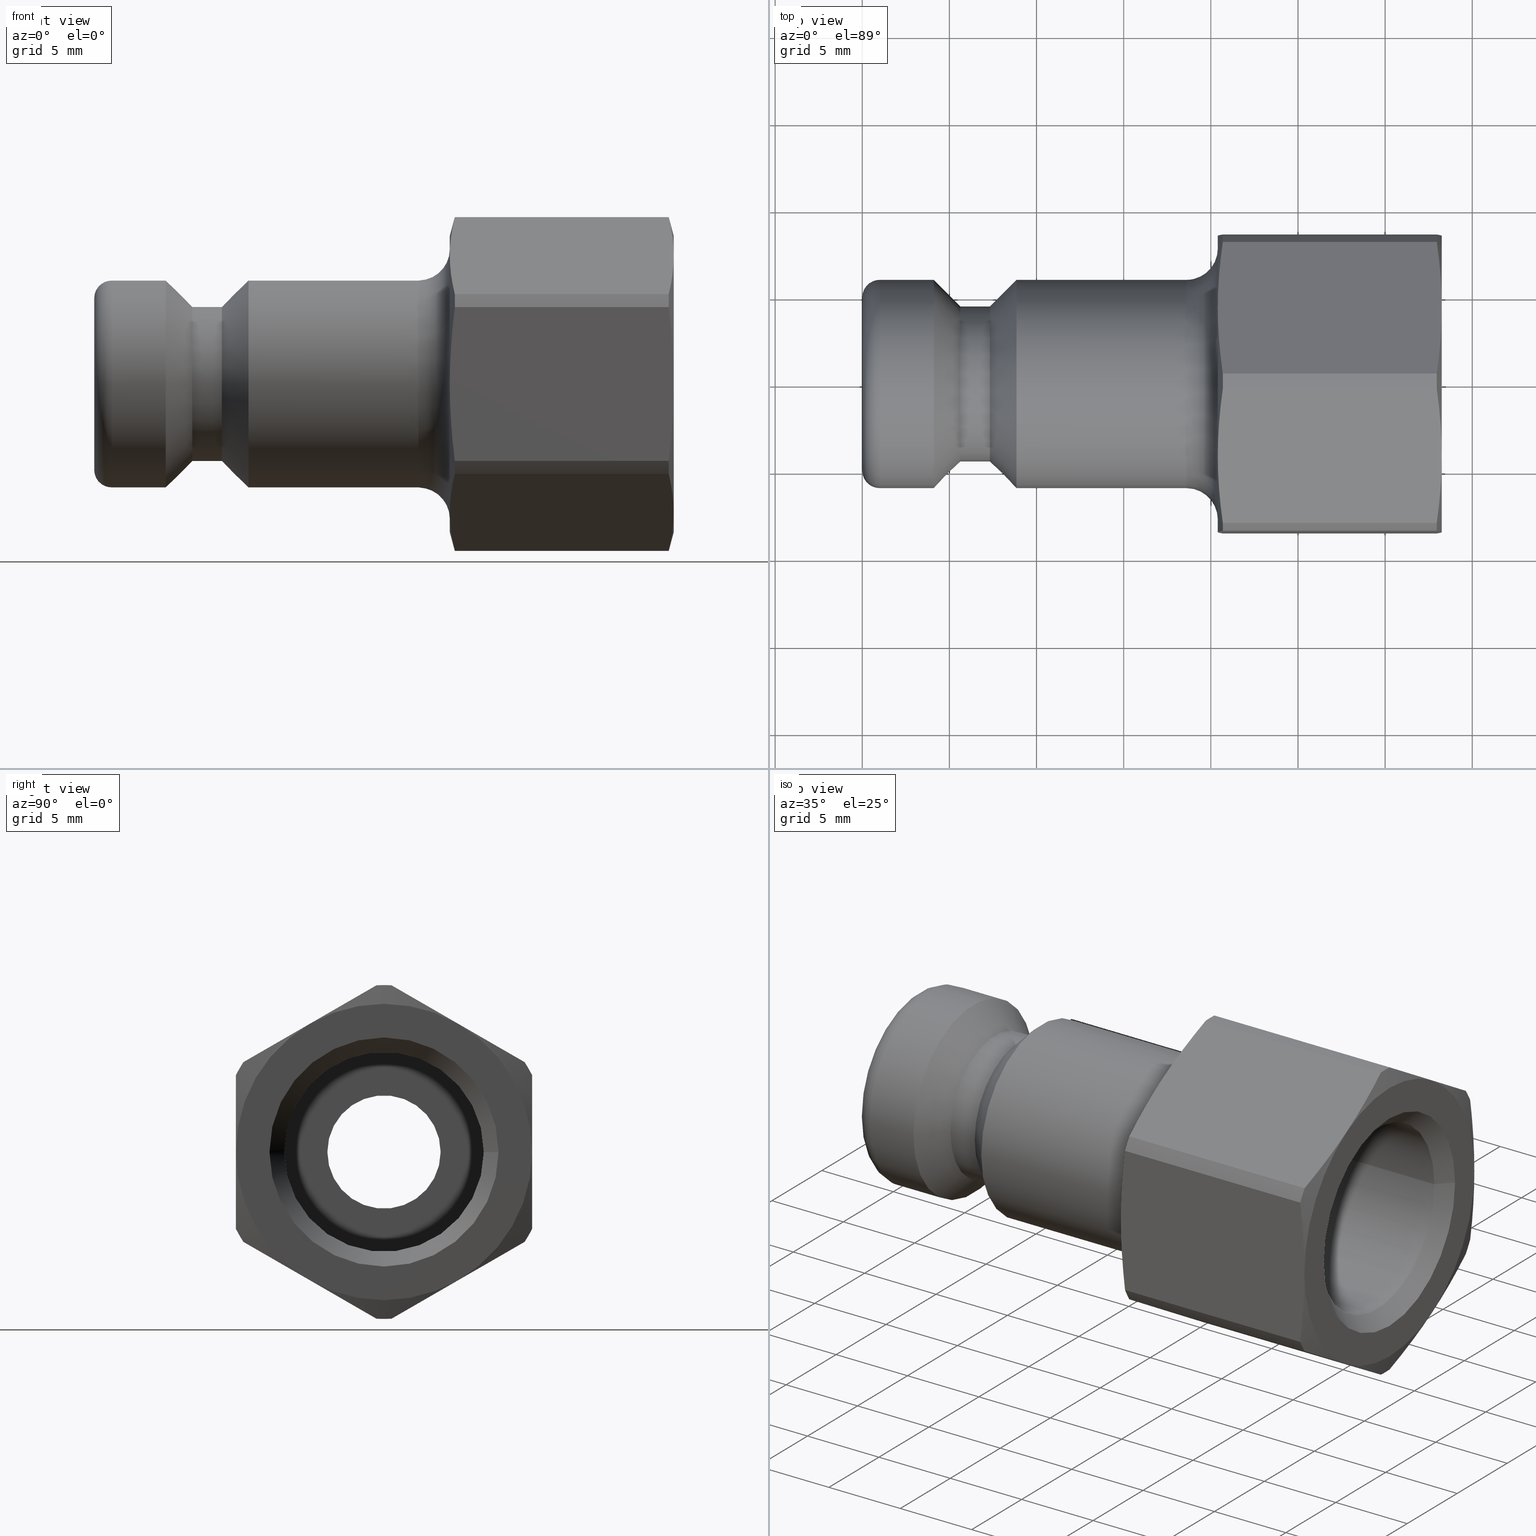
[diagram: canonical four-view strip — front | top / right | iso, engineering-drawing reading convention]
A machine part, canonical four-view strip (front | top / right | iso — engineering-drawing reading convention). The complete STEP part file that produces these views, byte-faithful:
ISO-10303-21;
HEADER;
/****************************************************************
 * Generated by software with PDE/Lib inside                    *
 * PDElib Version v51a, created Thu 01/14/2010                  *
 * ITI Transcendata (http://www.transcendata.com/)              *
 ****************************************************************/
FILE_DESCRIPTION((''),'2;1');
FILE_NAME('J:\\3D Zeichnungen_step\\Serie 52\\52sfiw13sxn.stp','2012-12-12T09:20:34',('IA176480'),(''),'Autodesk Inventor 2011','Autodesk Inventor 2011','');
FILE_SCHEMA(('AUTOMOTIVE_DESIGN { 1 0 10303 214 1 1 1 1 }'));
ENDSEC;
DATA;
#5=APPLICATION_CONTEXT('automotive design');
#6=APPLICATION_PROTOCOL_DEFINITION('International Standard','automotive_design',2001,#5);
#7=PRODUCT_CONTEXT('',#5,'mechanical');
#8=PRODUCT('D105388','D105388',$,(#7));
#9=PRODUCT_RELATED_PRODUCT_CATEGORY('part',$,(#8));
#10=PRODUCT_DEFINITION_FORMATION('',$,#8);
#11=PRODUCT_DEFINITION_CONTEXT('part definition',#5,'design');
#12=PRODUCT_DEFINITION('',$,#10,#11);
#18=(NAMED_UNIT(*)PLANE_ANGLE_UNIT()SI_UNIT($,.RADIAN.));
#19=DIMENSIONAL_EXPONENTS(0.0,0.0,0.0,0.0,0.0,0.0,0.0);
#20=PLANE_ANGLE_MEASURE_WITH_UNIT(PLANE_ANGLE_MEASURE(0.017453292500000),#18);
#24=(CONVERSION_BASED_UNIT('DEGREE',#20)NAMED_UNIT(#19)PLANE_ANGLE_UNIT());
#28=(NAMED_UNIT(*)SI_UNIT($,.STERADIAN.)SOLID_ANGLE_UNIT());
#32=(LENGTH_UNIT()NAMED_UNIT(*)SI_UNIT(.MILLI.,.METRE.));
#34=UNCERTAINTY_MEASURE_WITH_UNIT(LENGTH_MEASURE(0.010000000000000),#32,'DISTANCE_ACCURACY_VALUE','');
#36=(GEOMETRIC_REPRESENTATION_CONTEXT(3)GLOBAL_UNCERTAINTY_ASSIGNED_CONTEXT((#34))GLOBAL_UNIT_ASSIGNED_CONTEXT((#24,#28,#32))REPRESENTATION_CONTEXT('None','None'));
#37=AXIS2_PLACEMENT_3D('',#38,#39,#40);
#38=CARTESIAN_POINT('',(0.0,0.0,0.0));
#39=DIRECTION('',(0.0,0.0,1.0));
#40=DIRECTION('',(1.0,0.0,0.0));
#41=SHAPE_REPRESENTATION('',(#37),#36);
#42=PRODUCT_DEFINITION_SHAPE('','',#12);
#43=SHAPE_DEFINITION_REPRESENTATION(#42,#41);
#49=(NAMED_UNIT(*)PLANE_ANGLE_UNIT()SI_UNIT($,.RADIAN.));
#50=DIMENSIONAL_EXPONENTS(0.0,0.0,0.0,0.0,0.0,0.0,0.0);
#51=PLANE_ANGLE_MEASURE_WITH_UNIT(PLANE_ANGLE_MEASURE(0.017453292500000),#49);
#55=(CONVERSION_BASED_UNIT('DEGREE',#51)NAMED_UNIT(#50)PLANE_ANGLE_UNIT());
#59=(NAMED_UNIT(*)SI_UNIT($,.STERADIAN.)SOLID_ANGLE_UNIT());
#63=(LENGTH_UNIT()NAMED_UNIT(*)SI_UNIT(.MILLI.,.METRE.));
#65=UNCERTAINTY_MEASURE_WITH_UNIT(LENGTH_MEASURE(0.000001000000000),#63,'DISTANCE_ACCURACY_VALUE','');
#67=(GEOMETRIC_REPRESENTATION_CONTEXT(3)GLOBAL_UNCERTAINTY_ASSIGNED_CONTEXT((#65))GLOBAL_UNIT_ASSIGNED_CONTEXT((#55,#59,#63))REPRESENTATION_CONTEXT('','3D'));
#68=CARTESIAN_POINT('',(18.600000000000001,0.0,0.0));
#69=DIRECTION('',(1.0,0.0,0.0));
#70=DIRECTION('',(0.0,0.0,-1.0));
#71=AXIS2_PLACEMENT_3D('',#68,#69,#70);
#72=TOROIDAL_SURFACE('',#71,7.775000000000000,1.800000000000000);
#73=CARTESIAN_POINT('',(18.600000000000001,5.975000000000001,0.0));
#74=VERTEX_POINT('',#73);
#75=CARTESIAN_POINT('',(18.600000000000001,0.0,0.0));
#76=DIRECTION('',(1.0,0.0,0.0));
#77=DIRECTION('',(0.0,-1.0,0.0));
#78=AXIS2_PLACEMENT_3D('',#75,#76,#77);
#79=CIRCLE('',#78,5.975000000000001);
#80=EDGE_CURVE('',#74,#74,#79,.T.);
#81=ORIENTED_EDGE('',*,*,#80,.T.);
#82=EDGE_LOOP('',(#81));
#83=FACE_OUTER_BOUND('',#82,.T.);
#84=CARTESIAN_POINT('',(20.399999999999999,7.775000000000000,-1.904326E-015));
#85=VERTEX_POINT('',#84);
#86=CARTESIAN_POINT('',(20.399999999999999,0.0,0.0));
#87=DIRECTION('',(-1.0,0.0,0.0));
#88=DIRECTION('',(0.0,-1.0,0.0));
#89=AXIS2_PLACEMENT_3D('',#86,#87,#88);
#90=CIRCLE('',#89,7.775000000000000);
#91=EDGE_CURVE('',#85,#85,#90,.T.);
#92=ORIENTED_EDGE('',*,*,#91,.T.);
#93=EDGE_LOOP('',(#92));
#94=FACE_BOUND('',#93,.T.);
#95=ADVANCED_FACE('',(#83,#94),#72,.F.);
#96=CARTESIAN_POINT('',(14.625000000000000,0.0,0.0));
#97=DIRECTION('',(1.0,0.0,0.0));
#98=DIRECTION('',(0.0,1.0,0.0));
#99=AXIS2_PLACEMENT_3D('',#96,#97,#98);
#100=CYLINDRICAL_SURFACE('',#99,5.975000000000001);
#101=CARTESIAN_POINT('',(8.849999999999998,5.975000000000001,0.0));
#102=VERTEX_POINT('',#101);
#103=CARTESIAN_POINT('',(8.849999999999998,0.0,0.0));
#104=DIRECTION('',(1.0,0.0,0.0));
#105=DIRECTION('',(0.0,1.0,0.0));
#106=AXIS2_PLACEMENT_3D('',#103,#104,#105);
#107=CIRCLE('',#106,5.975000000000001);
#108=EDGE_CURVE('',#102,#102,#107,.T.);
#109=ORIENTED_EDGE('',*,*,#108,.T.);
#110=EDGE_LOOP('',(#109));
#111=FACE_OUTER_BOUND('',#110,.T.);
#112=ORIENTED_EDGE('',*,*,#80,.F.);
#113=EDGE_LOOP('',(#112));
#114=FACE_BOUND('',#113,.T.);
#115=ADVANCED_FACE('',(#111,#114),#100,.T.);
#116=CARTESIAN_POINT('',(20.399999999999999,7.237500000000001,0.0));
#117=DIRECTION('',(-1.0,0.0,0.0));
#118=DIRECTION('',(0.0,0.0,1.0));
#119=AXIS2_PLACEMENT_3D('',#116,#117,#118);
#120=PLANE('',#119);
#121=CARTESIAN_POINT('',(20.399999999999999,8.500000000000000,0.0));
#122=VERTEX_POINT('',#121);
#123=CARTESIAN_POINT('',(20.399999999999999,4.250000000000001,7.361215932167728));
#124=VERTEX_POINT('',#123);
#125=CARTESIAN_POINT('',(20.399999999999999,0.0,0.0));
#126=DIRECTION('',(1.0,0.0,0.0));
#127=DIRECTION('',(0.0,1.0,0.0));
#128=AXIS2_PLACEMENT_3D('',#125,#126,#127);
#129=CIRCLE('',#128,8.500000000000000);
#130=EDGE_CURVE('',#122,#124,#129,.T.);
#131=ORIENTED_EDGE('',*,*,#130,.F.);
#132=CARTESIAN_POINT('',(20.399999999999999,4.249999999999994,-7.361215932167733));
#133=VERTEX_POINT('',#132);
#134=CARTESIAN_POINT('',(20.399999999999999,0.0,0.0));
#135=DIRECTION('',(1.0,0.0,0.0));
#136=DIRECTION('',(0.0,1.0,0.0));
#137=AXIS2_PLACEMENT_3D('',#134,#135,#136);
#138=CIRCLE('',#137,8.500000000000000);
#139=EDGE_CURVE('',#133,#122,#138,.T.);
#140=ORIENTED_EDGE('',*,*,#139,.F.);
#141=CARTESIAN_POINT('',(20.399999999999999,-4.250000000000004,-7.361215932167728));
#142=VERTEX_POINT('',#141);
#143=CARTESIAN_POINT('',(20.399999999999999,0.0,0.0));
#144=DIRECTION('',(1.0,0.0,0.0));
#145=DIRECTION('',(0.0,1.0,0.0));
#146=AXIS2_PLACEMENT_3D('',#143,#144,#145);
#147=CIRCLE('',#146,8.500000000000000);
#148=EDGE_CURVE('',#142,#133,#147,.T.);
#149=ORIENTED_EDGE('',*,*,#148,.F.);
#150=CARTESIAN_POINT('',(20.399999999999999,-8.500000000000000,1.415534E-015));
#151=VERTEX_POINT('',#150);
#152=CARTESIAN_POINT('',(20.399999999999999,0.0,0.0));
#153=DIRECTION('',(1.0,0.0,0.0));
#154=DIRECTION('',(0.0,1.0,0.0));
#155=AXIS2_PLACEMENT_3D('',#152,#153,#154);
#156=CIRCLE('',#155,8.500000000000000);
#157=EDGE_CURVE('',#151,#142,#156,.T.);
#158=ORIENTED_EDGE('',*,*,#157,.F.);
#159=CARTESIAN_POINT('',(20.399999999999999,-4.249999999999998,7.361215932167731));
#160=VERTEX_POINT('',#159);
#161=CARTESIAN_POINT('',(20.399999999999999,0.0,0.0));
#162=DIRECTION('',(1.0,0.0,0.0));
#163=DIRECTION('',(0.0,1.0,0.0));
#164=AXIS2_PLACEMENT_3D('',#161,#162,#163);
#165=CIRCLE('',#164,8.500000000000000);
#166=EDGE_CURVE('',#160,#151,#165,.T.);
#167=ORIENTED_EDGE('',*,*,#166,.F.);
#168=CARTESIAN_POINT('',(20.399999999999999,0.0,0.0));
#169=DIRECTION('',(1.0,0.0,0.0));
#170=DIRECTION('',(0.0,1.0,0.0));
#171=AXIS2_PLACEMENT_3D('',#168,#169,#170);
#172=CIRCLE('',#171,8.500000000000000);
#173=EDGE_CURVE('',#124,#160,#172,.T.);
#174=ORIENTED_EDGE('',*,*,#173,.F.);
#175=EDGE_LOOP('',(#131,#140,#149,#158,#167,#174));
#176=FACE_OUTER_BOUND('',#175,.T.);
#177=ORIENTED_EDGE('',*,*,#91,.F.);
#178=EDGE_LOOP('',(#177));
#179=FACE_BOUND('',#178,.T.);
#180=ADVANCED_FACE('',(#176,#179),#120,.T.);
#181=CARTESIAN_POINT('',(1.0,0.0,0.0));
#182=DIRECTION('',(1.0,0.0,0.0));
#183=DIRECTION('',(0.0,0.0,-1.0));
#184=AXIS2_PLACEMENT_3D('',#181,#182,#183);
#185=TOROIDAL_SURFACE('',#184,4.975000000000001,1.0);
#186=CARTESIAN_POINT('',(0.0,4.975000000000001,0.0));
#187=VERTEX_POINT('',#186);
#188=CARTESIAN_POINT('',(0.0,0.0,0.0));
#189=DIRECTION('',(1.0,0.0,0.0));
#190=DIRECTION('',(0.0,-1.0,0.0));
#191=AXIS2_PLACEMENT_3D('',#188,#189,#190);
#192=CIRCLE('',#191,4.975000000000001);
#193=EDGE_CURVE('',#187,#187,#192,.T.);
#194=ORIENTED_EDGE('',*,*,#193,.T.);
#195=EDGE_LOOP('',(#194));
#196=FACE_OUTER_BOUND('',#195,.T.);
#197=CARTESIAN_POINT('',(1.0,5.975000000000001,-1.463453E-015));
#198=VERTEX_POINT('',#197);
#199=CARTESIAN_POINT('',(1.0,0.0,0.0));
#200=DIRECTION('',(-1.0,0.0,0.0));
#201=DIRECTION('',(0.0,-1.0,0.0));
#202=AXIS2_PLACEMENT_3D('',#199,#200,#201);
#203=CIRCLE('',#202,5.975000000000001);
#204=EDGE_CURVE('',#198,#198,#203,.T.);
#205=ORIENTED_EDGE('',*,*,#204,.T.);
#206=EDGE_LOOP('',(#205));
#207=FACE_BOUND('',#206,.T.);
#208=ADVANCED_FACE('',(#196,#207),#185,.T.);
#209=CARTESIAN_POINT('',(2.050000000000000,0.0,0.0));
#210=DIRECTION('',(1.0,0.0,0.0));
#211=DIRECTION('',(0.0,1.0,0.0));
#212=AXIS2_PLACEMENT_3D('',#209,#210,#211);
#213=CYLINDRICAL_SURFACE('',#212,5.975000000000001);
#214=CARTESIAN_POINT('',(4.100000000000000,5.975000000000001,0.0));
#215=VERTEX_POINT('',#214);
#216=CARTESIAN_POINT('',(4.100000000000000,0.0,0.0));
#217=DIRECTION('',(1.0,0.0,0.0));
#218=DIRECTION('',(0.0,1.0,0.0));
#219=AXIS2_PLACEMENT_3D('',#216,#217,#218);
#220=CIRCLE('',#219,5.975000000000001);
#221=EDGE_CURVE('',#215,#215,#220,.T.);
#222=ORIENTED_EDGE('',*,*,#221,.F.);
#223=EDGE_LOOP('',(#222));
#224=FACE_OUTER_BOUND('',#223,.T.);
#225=ORIENTED_EDGE('',*,*,#204,.F.);
#226=EDGE_LOOP('',(#225));
#227=FACE_BOUND('',#226,.T.);
#228=ADVANCED_FACE('',(#224,#227),#213,.T.);
#229=CARTESIAN_POINT('',(0.0,4.612499999999999,0.0));
#230=DIRECTION('',(-1.0,0.0,0.0));
#231=DIRECTION('',(0.0,0.0,1.0));
#232=AXIS2_PLACEMENT_3D('',#229,#230,#231);
#233=PLANE('',#232);
#234=ORIENTED_EDGE('',*,*,#193,.F.);
#235=EDGE_LOOP('',(#234));
#236=FACE_OUTER_BOUND('',#235,.T.);
#237=CARTESIAN_POINT('',(0.0,3.249999999999998,0.0));
#238=VERTEX_POINT('',#237);
#239=CARTESIAN_POINT('',(0.0,0.0,0.0));
#240=DIRECTION('',(1.0,0.0,0.0));
#241=DIRECTION('',(0.0,1.0,0.0));
#242=AXIS2_PLACEMENT_3D('',#239,#240,#241);
#243=CIRCLE('',#242,3.249999999999998);
#244=EDGE_CURVE('',#238,#238,#243,.T.);
#245=ORIENTED_EDGE('',*,*,#244,.T.);
#246=EDGE_LOOP('',(#245));
#247=FACE_BOUND('',#246,.T.);
#248=ADVANCED_FACE('',(#236,#247),#233,.T.);
#249=CARTESIAN_POINT('',(34.482762852840338,4.249999999999995,-7.361215932167733));
#250=DIRECTION('',(0.0,-0.499999999999999,0.866025403784439));
#251=DIRECTION('',(0.0,-0.866025403784439,-0.499999999999999));
#252=AXIS2_PLACEMENT_3D('',#249,#250,#251);
#253=PLANE('',#252);
#254=CARTESIAN_POINT('',(20.688045381863454,8.067455795421862,-5.157206801061425));
#255=VERTEX_POINT('',#254);
#256=CARTESIAN_POINT('',(20.688045381863454,8.067455795421894,-5.157206801061407));
#257=CARTESIAN_POINT('',(20.400000000000009,6.045207427999298,-6.324752440361122));
#258=CARTESIAN_POINT('',(20.400000000000006,4.249999999999995,-7.361215932167734));
#266=(BOUNDED_CURVE()B_SPLINE_CURVE(2,(#256,#257,#258),.UNSPECIFIED.,.F.,.U.)B_SPLINE_CURVE_WITH_KNOTS((3,3),(0.0,0.441955310884675),.UNSPECIFIED.)CURVE()GEOMETRIC_REPRESENTATION_ITEM()RATIONAL_B_SPLINE_CURVE((1.0,1.031133014754900,1.0))REPRESENTATION_ITEM(''));
#267=EDGE_CURVE('',#255,#133,#266,.T.);
#268=ORIENTED_EDGE('',*,*,#267,.F.);
#269=CARTESIAN_POINT('',(32.961954618136538,8.067455795421862,-5.157206801061425));
#270=VERTEX_POINT('',#269);
#271=CARTESIAN_POINT('',(32.961954618136545,8.067455795421862,-5.157206801061425));
#272=DIRECTION('',(-1.0,0.0,0.0));
#273=VECTOR('',#272,12.273909236273091);
#274=LINE('',#271,#273);
#275=EDGE_CURVE('',#270,#255,#274,.T.);
#276=ORIENTED_EDGE('',*,*,#275,.F.);
#277=CARTESIAN_POINT('',(33.250000000000000,4.249999999999994,-7.361215932167733));
#278=VERTEX_POINT('',#277);
#279=CARTESIAN_POINT('',(33.250000000000000,4.249999999999994,-7.361215932167734));
#280=CARTESIAN_POINT('',(33.250000000000000,6.045207427999223,-6.324752440361166));
#281=CARTESIAN_POINT('',(32.961954618136538,8.067455795421861,-5.157206801061427));
#289=(BOUNDED_CURVE()B_SPLINE_CURVE(2,(#279,#280,#281),.UNSPECIFIED.,.F.,.U.)B_SPLINE_CURVE_WITH_KNOTS((3,3),(0.441955310884671,0.883910621769341),.UNSPECIFIED.)CURVE()GEOMETRIC_REPRESENTATION_ITEM()RATIONAL_B_SPLINE_CURVE((1.0,1.031133014754903,1.0))REPRESENTATION_ITEM(''));
#290=EDGE_CURVE('',#278,#270,#289,.T.);
#291=ORIENTED_EDGE('',*,*,#290,.F.);
#292=CARTESIAN_POINT('',(32.961954618136538,0.432544204578125,-9.565225063274042));
#293=VERTEX_POINT('',#292);
#294=CARTESIAN_POINT('',(32.961954618136538,0.432544204578128,-9.565225063274042));
#295=CARTESIAN_POINT('',(33.250000000000000,2.454792572000764,-8.397679423974303));
#296=CARTESIAN_POINT('',(33.250000000000000,4.249999999999994,-7.361215932167734));
#304=(BOUNDED_CURVE()B_SPLINE_CURVE(2,(#294,#295,#296),.UNSPECIFIED.,.F.,.U.)B_SPLINE_CURVE_WITH_KNOTS((3,3),(0.0,0.441955310884671),.UNSPECIFIED.)CURVE()GEOMETRIC_REPRESENTATION_ITEM()RATIONAL_B_SPLINE_CURVE((1.0,1.031133014754924,1.0))REPRESENTATION_ITEM(''));
#305=EDGE_CURVE('',#293,#278,#304,.T.);
#306=ORIENTED_EDGE('',*,*,#305,.F.);
#307=CARTESIAN_POINT('',(20.688045381863454,0.432544204578125,-9.565225063274042));
#308=VERTEX_POINT('',#307);
#309=CARTESIAN_POINT('',(20.688045381863454,0.432544204578125,-9.565225063274042));
#310=DIRECTION('',(1.0,0.0,0.0));
#311=VECTOR('',#310,12.273909236273091);
#312=LINE('',#309,#311);
#313=EDGE_CURVE('',#308,#293,#312,.T.);
#314=ORIENTED_EDGE('',*,*,#313,.F.);
#315=CARTESIAN_POINT('',(20.400000000000006,4.249999999999995,-7.361215932167734));
#316=CARTESIAN_POINT('',(20.399999999999999,2.454792572000692,-8.397679423974347));
#317=CARTESIAN_POINT('',(20.688045381863454,0.432544204578093,-9.565225063274061));
#325=(BOUNDED_CURVE()B_SPLINE_CURVE(2,(#315,#316,#317),.UNSPECIFIED.,.F.,.U.)B_SPLINE_CURVE_WITH_KNOTS((3,3),(0.441955310884675,0.883910621769349),.UNSPECIFIED.)CURVE()GEOMETRIC_REPRESENTATION_ITEM()RATIONAL_B_SPLINE_CURVE((1.0,1.031133014754905,1.0))REPRESENTATION_ITEM(''));
#326=EDGE_CURVE('',#133,#308,#325,.T.);
#327=ORIENTED_EDGE('',*,*,#326,.F.);
#328=EDGE_LOOP('',(#268,#276,#291,#306,#314,#327));
#329=FACE_OUTER_BOUND('',#328,.T.);
#330=ADVANCED_FACE('',(#329),#253,.F.);
#331=CARTESIAN_POINT('',(34.482762852840338,-4.250000000000004,-7.361215932167728));
#332=DIRECTION('',(0.0,0.500000000000000,0.866025403784438));
#333=DIRECTION('',(0.0,-0.866025403784438,0.500000000000000));
#334=AXIS2_PLACEMENT_3D('',#331,#332,#333);
#335=PLANE('',#334);
#336=CARTESIAN_POINT('',(20.688045381863454,-0.432544204578139,-9.565225063274042));
#337=VERTEX_POINT('',#336);
#338=CARTESIAN_POINT('',(20.688045381863454,-0.432544204578108,-9.565225063274060));
#339=CARTESIAN_POINT('',(20.400000000000009,-2.454792572000709,-8.397679423974338));
#340=CARTESIAN_POINT('',(20.400000000000006,-4.250000000000004,-7.361215932167728));
#348=(BOUNDED_CURVE()B_SPLINE_CURVE(2,(#338,#339,#340),.UNSPECIFIED.,.F.,.U.)B_SPLINE_CURVE_WITH_KNOTS((3,3),(0.0,0.441955310884674),.UNSPECIFIED.)CURVE()GEOMETRIC_REPRESENTATION_ITEM()RATIONAL_B_SPLINE_CURVE((1.0,1.031133014754907,1.0))REPRESENTATION_ITEM(''));
#349=EDGE_CURVE('',#337,#142,#348,.T.);
#350=ORIENTED_EDGE('',*,*,#349,.F.);
#351=CARTESIAN_POINT('',(32.961954618136538,-0.432544204578139,-9.565225063274042));
#352=VERTEX_POINT('',#351);
#353=CARTESIAN_POINT('',(32.961954618136545,-0.432544204578139,-9.565225063274042));
#354=DIRECTION('',(-1.0,0.0,0.0));
#355=VECTOR('',#354,12.273909236273091);
#356=LINE('',#353,#355);
#357=EDGE_CURVE('',#352,#337,#356,.T.);
#358=ORIENTED_EDGE('',*,*,#357,.F.);
#359=CARTESIAN_POINT('',(33.250000000000000,-4.250000000000004,-7.361215932167728));
#360=VERTEX_POINT('',#359);
#361=CARTESIAN_POINT('',(33.250000000000000,-4.250000000000004,-7.361215932167728));
#362=CARTESIAN_POINT('',(33.250000000000000,-2.454792572000780,-8.397679423974296));
#363=CARTESIAN_POINT('',(32.961954618136538,-0.432544204578139,-9.565225063274042));
#371=(BOUNDED_CURVE()B_SPLINE_CURVE(2,(#361,#362,#363),.UNSPECIFIED.,.F.,.U.)B_SPLINE_CURVE_WITH_KNOTS((3,3),(0.441955310884671,0.883910621769342),.UNSPECIFIED.)CURVE()GEOMETRIC_REPRESENTATION_ITEM()RATIONAL_B_SPLINE_CURVE((1.0,1.031133014754922,1.0))REPRESENTATION_ITEM(''));
#372=EDGE_CURVE('',#360,#352,#371,.T.);
#373=ORIENTED_EDGE('',*,*,#372,.F.);
#374=CARTESIAN_POINT('',(32.961954618136538,-8.067455795421870,-5.157206801061413));
#375=VERTEX_POINT('',#374);
#376=CARTESIAN_POINT('',(32.961954618136538,-8.067455795421868,-5.157206801061415));
#377=CARTESIAN_POINT('',(33.250000000000007,-6.045207427999194,-6.324752440361178));
#378=CARTESIAN_POINT('',(33.250000000000000,-4.250000000000004,-7.361215932167728));
#386=(BOUNDED_CURVE()B_SPLINE_CURVE(2,(#376,#377,#378),.UNSPECIFIED.,.F.,.U.)B_SPLINE_CURVE_WITH_KNOTS((3,3),(0.0,0.441955310884671),.UNSPECIFIED.)CURVE()GEOMETRIC_REPRESENTATION_ITEM()RATIONAL_B_SPLINE_CURVE((1.0,1.031133014754933,1.0))REPRESENTATION_ITEM(''));
#387=EDGE_CURVE('',#375,#360,#386,.T.);
#388=ORIENTED_EDGE('',*,*,#387,.F.);
#389=CARTESIAN_POINT('',(20.688045381863454,-8.067455795421870,-5.157206801061413));
#390=VERTEX_POINT('',#389);
#391=CARTESIAN_POINT('',(20.688045381863454,-8.067455795421870,-5.157206801061413));
#392=DIRECTION('',(1.0,0.0,0.0));
#393=VECTOR('',#392,12.273909236273091);
#394=LINE('',#391,#393);
#395=EDGE_CURVE('',#390,#375,#394,.T.);
#396=ORIENTED_EDGE('',*,*,#395,.F.);
#397=CARTESIAN_POINT('',(20.400000000000006,-4.250000000000004,-7.361215932167728));
#398=CARTESIAN_POINT('',(20.399999999999999,-6.045207427999300,-6.324752440361117));
#399=CARTESIAN_POINT('',(20.688045381863454,-8.067455795421900,-5.157206801061395));
#407=(BOUNDED_CURVE()B_SPLINE_CURVE(2,(#397,#398,#399),.UNSPECIFIED.,.F.,.U.)B_SPLINE_CURVE_WITH_KNOTS((3,3),(0.441955310884674,0.883910621769349),.UNSPECIFIED.)CURVE()GEOMETRIC_REPRESENTATION_ITEM()RATIONAL_B_SPLINE_CURVE((1.0,1.031133014754903,1.0))REPRESENTATION_ITEM(''));
#408=EDGE_CURVE('',#142,#390,#407,.T.);
#409=ORIENTED_EDGE('',*,*,#408,.F.);
#410=EDGE_LOOP('',(#350,#358,#373,#388,#396,#409));
#411=FACE_OUTER_BOUND('',#410,.T.);
#412=ADVANCED_FACE('',(#411),#335,.F.);
#413=CARTESIAN_POINT('',(34.482762852840338,-8.500000000000000,1.110223E-015));
#414=DIRECTION('',(0.0,1.0,0.0));
#415=DIRECTION('',(0.0,0.0,1.0));
#416=AXIS2_PLACEMENT_3D('',#413,#414,#415);
#417=PLANE('',#416);
#418=CARTESIAN_POINT('',(20.688045381863454,-8.500000000000002,-4.408018262212622));
#419=VERTEX_POINT('',#418);
#420=CARTESIAN_POINT('',(20.688045381863454,-8.500000000000002,-4.408018262212659));
#421=CARTESIAN_POINT('',(20.400000000000009,-8.500000000000000,-2.072926983613210));
#422=CARTESIAN_POINT('',(20.400000000000006,-8.500000000000000,1.415534E-015));
#430=(BOUNDED_CURVE()B_SPLINE_CURVE(2,(#420,#421,#422),.UNSPECIFIED.,.F.,.U.)B_SPLINE_CURVE_WITH_KNOTS((3,3),(0.0,0.441955310884675),.UNSPECIFIED.)CURVE()GEOMETRIC_REPRESENTATION_ITEM()RATIONAL_B_SPLINE_CURVE((1.0,1.031133014754920,1.0))REPRESENTATION_ITEM(''));
#431=EDGE_CURVE('',#419,#151,#430,.T.);
#432=ORIENTED_EDGE('',*,*,#431,.F.);
#433=CARTESIAN_POINT('',(32.961954618136538,-8.500000000000002,-4.408018262212622));
#434=VERTEX_POINT('',#433);
#435=CARTESIAN_POINT('',(32.961954618136545,-8.500000000000002,-4.408018262212622));
#436=DIRECTION('',(-1.0,0.0,0.0));
#437=VECTOR('',#436,12.273909236273091);
#438=LINE('',#435,#437);
#439=EDGE_CURVE('',#434,#419,#438,.T.);
#440=ORIENTED_EDGE('',*,*,#439,.F.);
#441=CARTESIAN_POINT('',(33.250000000000000,-8.500000000000000,1.415534E-015));
#442=VERTEX_POINT('',#441);
#443=CARTESIAN_POINT('',(33.250000000000000,-8.500000000000000,1.415534E-015));
#444=CARTESIAN_POINT('',(33.250000000000000,-8.500000000000000,-2.072926983613113));
#445=CARTESIAN_POINT('',(32.961954618136538,-8.500000000000002,-4.408018262212622));
#453=(BOUNDED_CURVE()B_SPLINE_CURVE(2,(#443,#444,#445),.UNSPECIFIED.,.F.,.U.)B_SPLINE_CURVE_WITH_KNOTS((3,3),(0.441955310884671,0.883910621769342),.UNSPECIFIED.)CURVE()GEOMETRIC_REPRESENTATION_ITEM()RATIONAL_B_SPLINE_CURVE((1.0,1.031133014755003,1.0))REPRESENTATION_ITEM(''));
#454=EDGE_CURVE('',#442,#434,#453,.T.);
#455=ORIENTED_EDGE('',*,*,#454,.F.);
#456=CARTESIAN_POINT('',(32.961954618136538,-8.500000000000000,4.408018262212624));
#457=VERTEX_POINT('',#456);
#458=CARTESIAN_POINT('',(32.961954618136538,-8.500000000000000,4.408018262212624));
#459=CARTESIAN_POINT('',(33.250000000000000,-8.500000000000000,2.072926983613151));
#460=CARTESIAN_POINT('',(33.250000000000000,-8.500000000000000,1.415534E-015));
#468=(BOUNDED_CURVE()B_SPLINE_CURVE(2,(#458,#459,#460),.UNSPECIFIED.,.F.,.U.)B_SPLINE_CURVE_WITH_KNOTS((3,3),(0.0,0.441955310884671),.UNSPECIFIED.)CURVE()GEOMETRIC_REPRESENTATION_ITEM()RATIONAL_B_SPLINE_CURVE((1.0,1.031133014754911,1.0))REPRESENTATION_ITEM(''));
#469=EDGE_CURVE('',#457,#442,#468,.T.);
#470=ORIENTED_EDGE('',*,*,#469,.F.);
#471=CARTESIAN_POINT('',(20.688045381863454,-8.500000000000000,4.408018262212624));
#472=VERTEX_POINT('',#471);
#473=CARTESIAN_POINT('',(20.688045381863454,-8.500000000000000,4.408018262212624));
#474=DIRECTION('',(1.0,0.0,0.0));
#475=VECTOR('',#474,12.273909236273091);
#476=LINE('',#473,#475);
#477=EDGE_CURVE('',#472,#457,#476,.T.);
#478=ORIENTED_EDGE('',*,*,#477,.F.);
#479=CARTESIAN_POINT('',(20.400000000000006,-8.500000000000000,1.415534E-015));
#480=CARTESIAN_POINT('',(20.399999999999999,-8.500000000000000,2.072926983613213));
#481=CARTESIAN_POINT('',(20.688045381863454,-8.500000000000000,4.408018262212662));
#489=(BOUNDED_CURVE()B_SPLINE_CURVE(2,(#479,#480,#481),.UNSPECIFIED.,.F.,.U.)B_SPLINE_CURVE_WITH_KNOTS((3,3),(0.441955310884675,0.883910621769349),.UNSPECIFIED.)CURVE()GEOMETRIC_REPRESENTATION_ITEM()RATIONAL_B_SPLINE_CURVE((1.0,1.031133014754911,1.0))REPRESENTATION_ITEM(''));
#490=EDGE_CURVE('',#151,#472,#489,.T.);
#491=ORIENTED_EDGE('',*,*,#490,.F.);
#492=EDGE_LOOP('',(#432,#440,#455,#470,#478,#491));
#493=FACE_OUTER_BOUND('',#492,.T.);
#494=ADVANCED_FACE('',(#493),#417,.F.);
#495=CARTESIAN_POINT('',(34.482762852840338,-4.249999999999998,7.361215932167731));
#496=DIRECTION('',(0.0,0.500000000000000,-0.866025403784439));
#497=DIRECTION('',(0.0,0.866025403784439,0.500000000000000));
#498=AXIS2_PLACEMENT_3D('',#495,#496,#497);
#499=PLANE('',#498);
#500=CARTESIAN_POINT('',(20.688045381863454,-8.067455795421864,5.157206801061420));
#501=VERTEX_POINT('',#500);
#502=CARTESIAN_POINT('',(20.688045381863454,-8.067455795421896,5.157206801061403));
#503=CARTESIAN_POINT('',(20.400000000000009,-6.045207427999292,6.324752440361124));
#504=CARTESIAN_POINT('',(20.400000000000006,-4.249999999999998,7.361215932167731));
#512=(BOUNDED_CURVE()B_SPLINE_CURVE(2,(#502,#503,#504),.UNSPECIFIED.,.F.,.U.)B_SPLINE_CURVE_WITH_KNOTS((3,3),(0.0,0.441955310884674),.UNSPECIFIED.)CURVE()GEOMETRIC_REPRESENTATION_ITEM()RATIONAL_B_SPLINE_CURVE((1.0,1.031133014754906,1.0))REPRESENTATION_ITEM(''));
#513=EDGE_CURVE('',#501,#160,#512,.T.);
#514=ORIENTED_EDGE('',*,*,#513,.F.);
#515=CARTESIAN_POINT('',(32.961954618136538,-8.067455795421864,5.157206801061420));
#516=VERTEX_POINT('',#515);
#517=CARTESIAN_POINT('',(32.961954618136545,-8.067455795421864,5.157206801061420));
#518=DIRECTION('',(-1.0,0.0,0.0));
#519=VECTOR('',#518,12.273909236273091);
#520=LINE('',#517,#519);
#521=EDGE_CURVE('',#516,#501,#520,.T.);
#522=ORIENTED_EDGE('',*,*,#521,.F.);
#523=CARTESIAN_POINT('',(33.250000000000000,-4.249999999999998,7.361215932167731));
#524=VERTEX_POINT('',#523);
#525=CARTESIAN_POINT('',(33.250000000000000,-4.249999999999998,7.361215932167731));
#526=CARTESIAN_POINT('',(33.250000000000000,-6.045207427999228,6.324752440361161));
#527=CARTESIAN_POINT('',(32.961954618136538,-8.067455795421864,5.157206801061420));
#535=(BOUNDED_CURVE()B_SPLINE_CURVE(2,(#525,#526,#527),.UNSPECIFIED.,.F.,.U.)B_SPLINE_CURVE_WITH_KNOTS((3,3),(0.441955310884671,0.883910621769342),.UNSPECIFIED.)CURVE()GEOMETRIC_REPRESENTATION_ITEM()RATIONAL_B_SPLINE_CURVE((1.0,1.031133014754920,1.0))REPRESENTATION_ITEM(''));
#536=EDGE_CURVE('',#524,#516,#535,.T.);
#537=ORIENTED_EDGE('',*,*,#536,.F.);
#538=CARTESIAN_POINT('',(32.961954618136538,-0.432544204578131,9.565225063274042));
#539=VERTEX_POINT('',#538);
#540=CARTESIAN_POINT('',(32.961954618136538,-0.432544204578132,9.565225063274042));
#541=CARTESIAN_POINT('',(33.250000000000000,-2.454792572000761,8.397679423974305));
#542=CARTESIAN_POINT('',(33.250000000000000,-4.249999999999998,7.361215932167731));
#550=(BOUNDED_CURVE()B_SPLINE_CURVE(2,(#540,#541,#542),.UNSPECIFIED.,.F.,.U.)B_SPLINE_CURVE_WITH_KNOTS((3,3),(0.0,0.441955310884671),.UNSPECIFIED.)CURVE()GEOMETRIC_REPRESENTATION_ITEM()RATIONAL_B_SPLINE_CURVE((1.0,1.031133014754915,1.0))REPRESENTATION_ITEM(''));
#551=EDGE_CURVE('',#539,#524,#550,.T.);
#552=ORIENTED_EDGE('',*,*,#551,.F.);
#553=CARTESIAN_POINT('',(20.688045381863454,-0.432544204578131,9.565225063274042));
#554=VERTEX_POINT('',#553);
#555=CARTESIAN_POINT('',(20.688045381863454,-0.432544204578131,9.565225063274042));
#556=DIRECTION('',(1.0,0.0,0.0));
#557=VECTOR('',#556,12.273909236273091);
#558=LINE('',#555,#557);
#559=EDGE_CURVE('',#554,#539,#558,.T.);
#560=ORIENTED_EDGE('',*,*,#559,.F.);
#561=CARTESIAN_POINT('',(20.400000000000006,-4.249999999999998,7.361215932167731));
#562=CARTESIAN_POINT('',(20.399999999999999,-2.454792572000705,8.397679423974338));
#563=CARTESIAN_POINT('',(20.688045381863454,-0.432544204578101,9.565225063274060));
#571=(BOUNDED_CURVE()B_SPLINE_CURVE(2,(#561,#562,#563),.UNSPECIFIED.,.F.,.U.)B_SPLINE_CURVE_WITH_KNOTS((3,3),(0.441955310884674,0.883910621769349),.UNSPECIFIED.)CURVE()GEOMETRIC_REPRESENTATION_ITEM()RATIONAL_B_SPLINE_CURVE((1.0,1.031133014754906,1.0))REPRESENTATION_ITEM(''));
#572=EDGE_CURVE('',#160,#554,#571,.T.);
#573=ORIENTED_EDGE('',*,*,#572,.F.);
#574=EDGE_LOOP('',(#514,#522,#537,#552,#560,#573));
#575=FACE_OUTER_BOUND('',#574,.T.);
#576=ADVANCED_FACE('',(#575),#499,.F.);
#577=CARTESIAN_POINT('',(34.482762852840338,4.250000000000002,7.361215932167728));
#578=DIRECTION('',(0.0,-0.500000000000000,-0.866025403784439));
#579=DIRECTION('',(0.0,0.866025403784439,-0.500000000000000));
#580=AXIS2_PLACEMENT_3D('',#577,#578,#579);
#581=PLANE('',#580);
#582=CARTESIAN_POINT('',(20.688045381863454,0.432544204578135,9.565225063274042));
#583=VERTEX_POINT('',#582);
#584=CARTESIAN_POINT('',(20.688045381863454,0.432544204578103,9.565225063274060));
#585=CARTESIAN_POINT('',(20.400000000000009,2.454792572000702,8.397679423974340));
#586=CARTESIAN_POINT('',(20.400000000000006,4.250000000000002,7.361215932167728));
#594=(BOUNDED_CURVE()B_SPLINE_CURVE(2,(#584,#585,#586),.UNSPECIFIED.,.F.,.U.)B_SPLINE_CURVE_WITH_KNOTS((3,3),(0.0,0.441955310884675),.UNSPECIFIED.)CURVE()GEOMETRIC_REPRESENTATION_ITEM()RATIONAL_B_SPLINE_CURVE((1.0,1.031133014754910,1.0))REPRESENTATION_ITEM(''));
#595=EDGE_CURVE('',#583,#124,#594,.T.);
#596=ORIENTED_EDGE('',*,*,#595,.F.);
#597=CARTESIAN_POINT('',(32.961954618136538,0.432544204578135,9.565225063274042));
#598=VERTEX_POINT('',#597);
#599=CARTESIAN_POINT('',(32.961954618136545,0.432544204578135,9.565225063274042));
#600=DIRECTION('',(-1.0,0.0,0.0));
#601=VECTOR('',#600,12.273909236273091);
#602=LINE('',#599,#601);
#603=EDGE_CURVE('',#598,#583,#602,.T.);
#604=ORIENTED_EDGE('',*,*,#603,.F.);
#605=CARTESIAN_POINT('',(33.250000000000000,4.250000000000001,7.361215932167728));
#606=VERTEX_POINT('',#605);
#607=CARTESIAN_POINT('',(33.250000000000000,4.250000000000001,7.361215932167728));
#608=CARTESIAN_POINT('',(33.250000000000000,2.454792572000771,8.397679423974299));
#609=CARTESIAN_POINT('',(32.961954618136538,0.432544204578134,9.565225063274042));
#617=(BOUNDED_CURVE()B_SPLINE_CURVE(2,(#607,#608,#609),.UNSPECIFIED.,.F.,.U.)B_SPLINE_CURVE_WITH_KNOTS((3,3),(0.441955310884671,0.883910621769342),.UNSPECIFIED.)CURVE()GEOMETRIC_REPRESENTATION_ITEM()RATIONAL_B_SPLINE_CURVE((1.0,1.031133014754915,1.0))REPRESENTATION_ITEM(''));
#618=EDGE_CURVE('',#606,#598,#617,.T.);
#619=ORIENTED_EDGE('',*,*,#618,.F.);
#620=CARTESIAN_POINT('',(32.961954618136538,8.067455795421868,5.157206801061416));
#621=VERTEX_POINT('',#620);
#622=CARTESIAN_POINT('',(32.961954618136538,8.067455795421870,5.157206801061415));
#623=CARTESIAN_POINT('',(33.250000000000000,6.045207427999232,6.324752440361157));
#624=CARTESIAN_POINT('',(33.250000000000000,4.250000000000001,7.361215932167728));
#632=(BOUNDED_CURVE()B_SPLINE_CURVE(2,(#622,#623,#624),.UNSPECIFIED.,.F.,.U.)B_SPLINE_CURVE_WITH_KNOTS((3,3),(0.0,0.441955310884671),.UNSPECIFIED.)CURVE()GEOMETRIC_REPRESENTATION_ITEM()RATIONAL_B_SPLINE_CURVE((1.0,1.031133014754910,1.0))REPRESENTATION_ITEM(''));
#633=EDGE_CURVE('',#621,#606,#632,.T.);
#634=ORIENTED_EDGE('',*,*,#633,.F.);
#635=CARTESIAN_POINT('',(20.688045381863454,8.067455795421868,5.157206801061416));
#636=VERTEX_POINT('',#635);
#637=CARTESIAN_POINT('',(20.688045381863454,8.067455795421868,5.157206801061416));
#638=DIRECTION('',(1.0,0.0,0.0));
#639=VECTOR('',#638,12.273909236273091);
#640=LINE('',#637,#639);
#641=EDGE_CURVE('',#636,#621,#640,.T.);
#642=ORIENTED_EDGE('',*,*,#641,.F.);
#643=CARTESIAN_POINT('',(20.400000000000006,4.250000000000002,7.361215932167728));
#644=CARTESIAN_POINT('',(20.399999999999999,6.045207427999269,6.324752440361136));
#645=CARTESIAN_POINT('',(20.688045381863454,8.067455795421900,5.157206801061398));
#653=(BOUNDED_CURVE()B_SPLINE_CURVE(2,(#643,#644,#645),.UNSPECIFIED.,.F.,.U.)B_SPLINE_CURVE_WITH_KNOTS((3,3),(0.441955310884675,0.883910621769349),.UNSPECIFIED.)CURVE()GEOMETRIC_REPRESENTATION_ITEM()RATIONAL_B_SPLINE_CURVE((1.0,1.031133014754854,1.0))REPRESENTATION_ITEM(''));
#654=EDGE_CURVE('',#124,#636,#653,.T.);
#655=ORIENTED_EDGE('',*,*,#654,.F.);
#656=EDGE_LOOP('',(#596,#604,#619,#634,#642,#655));
#657=FACE_OUTER_BOUND('',#656,.T.);
#658=ADVANCED_FACE('',(#657),#581,.F.);
#659=CARTESIAN_POINT('',(33.105977309068273,0.0,0.0));
#660=DIRECTION('',(-1.0,0.0,0.0));
#661=DIRECTION('',(0.0,1.0,0.0));
#662=AXIS2_PLACEMENT_3D('',#659,#660,#661);
#663=CONICAL_SURFACE('',#662,9.037500000000001,74.999999999999730);
#664=ORIENTED_EDGE('',*,*,#633,.T.);
#665=CARTESIAN_POINT('',(33.250000000000000,8.500000000000000,0.0));
#666=VERTEX_POINT('',#665);
#667=CARTESIAN_POINT('',(33.250000000000000,0.0,0.0));
#668=DIRECTION('',(1.0,0.0,0.0));
#669=DIRECTION('',(0.0,1.0,0.0));
#670=AXIS2_PLACEMENT_3D('',#667,#668,#669);
#671=CIRCLE('',#670,8.500000000000000);
#672=EDGE_CURVE('',#666,#606,#671,.T.);
#673=ORIENTED_EDGE('',*,*,#672,.F.);
#674=CARTESIAN_POINT('',(32.961954618136538,8.500000000000000,4.408018262212623));
#675=VERTEX_POINT('',#674);
#676=CARTESIAN_POINT('',(33.250000000000000,8.500000000000000,0.0));
#677=CARTESIAN_POINT('',(33.250000000000000,8.500000000000000,2.072926983613114));
#678=CARTESIAN_POINT('',(32.961954618136538,8.500000000000000,4.408018262212623));
#686=(BOUNDED_CURVE()B_SPLINE_CURVE(2,(#676,#677,#678),.UNSPECIFIED.,.F.,.U.)B_SPLINE_CURVE_WITH_KNOTS((3,3),(0.441955310884671,0.883910621769342),.UNSPECIFIED.)CURVE()GEOMETRIC_REPRESENTATION_ITEM()RATIONAL_B_SPLINE_CURVE((1.0,1.031133014755002,1.0))REPRESENTATION_ITEM(''));
#687=EDGE_CURVE('',#666,#675,#686,.T.);
#688=ORIENTED_EDGE('',*,*,#687,.T.);
#689=CARTESIAN_POINT('',(32.961954618136538,0.0,0.0));
#690=DIRECTION('',(1.0,0.0,0.0));
#691=DIRECTION('',(0.0,1.0,0.0));
#692=AXIS2_PLACEMENT_3D('',#689,#690,#691);
#693=CIRCLE('',#692,9.574999999999999);
#694=EDGE_CURVE('',#675,#621,#693,.T.);
#695=ORIENTED_EDGE('',*,*,#694,.T.);
#696=EDGE_LOOP('',(#664,#673,#688,#695));
#697=FACE_OUTER_BOUND('',#696,.T.);
#698=ADVANCED_FACE('',(#697),#663,.T.);
#699=CARTESIAN_POINT('',(33.105977309068273,0.0,0.0));
#700=DIRECTION('',(-1.0,0.0,0.0));
#701=DIRECTION('',(0.0,1.0,0.0));
#702=AXIS2_PLACEMENT_3D('',#699,#700,#701);
#703=CONICAL_SURFACE('',#702,9.037500000000001,74.999999999999730);
#704=ORIENTED_EDGE('',*,*,#551,.T.);
#705=CARTESIAN_POINT('',(33.250000000000000,0.0,0.0));
#706=DIRECTION('',(1.0,0.0,0.0));
#707=DIRECTION('',(0.0,1.0,0.0));
#708=AXIS2_PLACEMENT_3D('',#705,#706,#707);
#709=CIRCLE('',#708,8.500000000000000);
#710=EDGE_CURVE('',#606,#524,#709,.T.);
#711=ORIENTED_EDGE('',*,*,#710,.F.);
#712=ORIENTED_EDGE('',*,*,#618,.T.);
#713=CARTESIAN_POINT('',(32.961954618136538,0.0,0.0));
#714=DIRECTION('',(1.0,0.0,0.0));
#715=DIRECTION('',(0.0,1.0,0.0));
#716=AXIS2_PLACEMENT_3D('',#713,#714,#715);
#717=CIRCLE('',#716,9.574999999999999);
#718=EDGE_CURVE('',#598,#539,#717,.T.);
#719=ORIENTED_EDGE('',*,*,#718,.T.);
#720=EDGE_LOOP('',(#704,#711,#712,#719));
#721=FACE_OUTER_BOUND('',#720,.T.);
#722=ADVANCED_FACE('',(#721),#703,.T.);
#723=CARTESIAN_POINT('',(33.105977309068273,0.0,0.0));
#724=DIRECTION('',(-1.0,0.0,0.0));
#725=DIRECTION('',(0.0,1.0,0.0));
#726=AXIS2_PLACEMENT_3D('',#723,#724,#725);
#727=CONICAL_SURFACE('',#726,9.037500000000001,74.999999999999730);
#728=ORIENTED_EDGE('',*,*,#469,.T.);
#729=CARTESIAN_POINT('',(33.250000000000000,0.0,0.0));
#730=DIRECTION('',(1.0,0.0,0.0));
#731=DIRECTION('',(0.0,1.0,0.0));
#732=AXIS2_PLACEMENT_3D('',#729,#730,#731);
#733=CIRCLE('',#732,8.500000000000000);
#734=EDGE_CURVE('',#524,#442,#733,.T.);
#735=ORIENTED_EDGE('',*,*,#734,.F.);
#736=ORIENTED_EDGE('',*,*,#536,.T.);
#737=CARTESIAN_POINT('',(32.961954618136538,0.0,0.0));
#738=DIRECTION('',(1.0,0.0,0.0));
#739=DIRECTION('',(0.0,1.0,0.0));
#740=AXIS2_PLACEMENT_3D('',#737,#738,#739);
#741=CIRCLE('',#740,9.574999999999999);
#742=EDGE_CURVE('',#516,#457,#741,.T.);
#743=ORIENTED_EDGE('',*,*,#742,.T.);
#744=EDGE_LOOP('',(#728,#735,#736,#743));
#745=FACE_OUTER_BOUND('',#744,.T.);
#746=ADVANCED_FACE('',(#745),#727,.T.);
#747=CARTESIAN_POINT('',(33.105977309068273,0.0,0.0));
#748=DIRECTION('',(-1.0,0.0,0.0));
#749=DIRECTION('',(0.0,1.0,0.0));
#750=AXIS2_PLACEMENT_3D('',#747,#748,#749);
#751=CONICAL_SURFACE('',#750,9.037500000000001,74.999999999999730);
#752=ORIENTED_EDGE('',*,*,#387,.T.);
#753=CARTESIAN_POINT('',(33.250000000000000,0.0,0.0));
#754=DIRECTION('',(1.0,0.0,0.0));
#755=DIRECTION('',(0.0,1.0,0.0));
#756=AXIS2_PLACEMENT_3D('',#753,#754,#755);
#757=CIRCLE('',#756,8.500000000000000);
#758=EDGE_CURVE('',#442,#360,#757,.T.);
#759=ORIENTED_EDGE('',*,*,#758,.F.);
#760=ORIENTED_EDGE('',*,*,#454,.T.);
#761=CARTESIAN_POINT('',(32.961954618136538,0.0,0.0));
#762=DIRECTION('',(1.0,0.0,0.0));
#763=DIRECTION('',(0.0,1.0,0.0));
#764=AXIS2_PLACEMENT_3D('',#761,#762,#763);
#765=CIRCLE('',#764,9.574999999999999);
#766=EDGE_CURVE('',#434,#375,#765,.T.);
#767=ORIENTED_EDGE('',*,*,#766,.T.);
#768=EDGE_LOOP('',(#752,#759,#760,#767));
#769=FACE_OUTER_BOUND('',#768,.T.);
#770=ADVANCED_FACE('',(#769),#751,.T.);
#771=CARTESIAN_POINT('',(33.105977309068273,0.0,0.0));
#772=DIRECTION('',(-1.0,0.0,0.0));
#773=DIRECTION('',(0.0,1.0,0.0));
#774=AXIS2_PLACEMENT_3D('',#771,#772,#773);
#775=CONICAL_SURFACE('',#774,9.037500000000001,74.999999999999730);
#776=ORIENTED_EDGE('',*,*,#290,.T.);
#777=CARTESIAN_POINT('',(32.961954618136538,8.500000000000000,-4.408018262212623));
#778=VERTEX_POINT('',#777);
#779=CARTESIAN_POINT('',(32.961954618136538,0.0,0.0));
#780=DIRECTION('',(1.0,0.0,0.0));
#781=DIRECTION('',(0.0,1.0,0.0));
#782=AXIS2_PLACEMENT_3D('',#779,#780,#781);
#783=CIRCLE('',#782,9.574999999999999);
#784=EDGE_CURVE('',#270,#778,#783,.T.);
#785=ORIENTED_EDGE('',*,*,#784,.T.);
#786=CARTESIAN_POINT('',(32.961954618136538,8.500000000000000,-4.408018262212623));
#787=CARTESIAN_POINT('',(33.250000000000000,8.500000000000000,-2.072926983613114));
#788=CARTESIAN_POINT('',(33.250000000000000,8.500000000000000,0.0));
#796=(BOUNDED_CURVE()B_SPLINE_CURVE(2,(#786,#787,#788),.UNSPECIFIED.,.F.,.U.)B_SPLINE_CURVE_WITH_KNOTS((3,3),(0.0,0.441955310884671),.UNSPECIFIED.)CURVE()GEOMETRIC_REPRESENTATION_ITEM()RATIONAL_B_SPLINE_CURVE((1.0,1.031133014755002,1.0))REPRESENTATION_ITEM(''));
#797=EDGE_CURVE('',#778,#666,#796,.T.);
#798=ORIENTED_EDGE('',*,*,#797,.T.);
#799=CARTESIAN_POINT('',(33.250000000000000,0.0,0.0));
#800=DIRECTION('',(1.0,0.0,0.0));
#801=DIRECTION('',(0.0,1.0,0.0));
#802=AXIS2_PLACEMENT_3D('',#799,#800,#801);
#803=CIRCLE('',#802,8.500000000000000);
#804=EDGE_CURVE('',#278,#666,#803,.T.);
#805=ORIENTED_EDGE('',*,*,#804,.F.);
#806=EDGE_LOOP('',(#776,#785,#798,#805));
#807=FACE_OUTER_BOUND('',#806,.T.);
#808=ADVANCED_FACE('',(#807),#775,.T.);
#809=CARTESIAN_POINT('',(33.105977309068273,0.0,0.0));
#810=DIRECTION('',(-1.0,0.0,0.0));
#811=DIRECTION('',(0.0,1.0,0.0));
#812=AXIS2_PLACEMENT_3D('',#809,#810,#811);
#813=CONICAL_SURFACE('',#812,9.037500000000001,74.999999999999730);
#814=ORIENTED_EDGE('',*,*,#305,.T.);
#815=CARTESIAN_POINT('',(33.250000000000000,0.0,0.0));
#816=DIRECTION('',(1.0,0.0,0.0));
#817=DIRECTION('',(0.0,1.0,0.0));
#818=AXIS2_PLACEMENT_3D('',#815,#816,#817);
#819=CIRCLE('',#818,8.500000000000000);
#820=EDGE_CURVE('',#360,#278,#819,.T.);
#821=ORIENTED_EDGE('',*,*,#820,.F.);
#822=ORIENTED_EDGE('',*,*,#372,.T.);
#823=CARTESIAN_POINT('',(32.961954618136538,0.0,0.0));
#824=DIRECTION('',(1.0,0.0,0.0));
#825=DIRECTION('',(0.0,1.0,0.0));
#826=AXIS2_PLACEMENT_3D('',#823,#824,#825);
#827=CIRCLE('',#826,9.574999999999999);
#828=EDGE_CURVE('',#352,#293,#827,.T.);
#829=ORIENTED_EDGE('',*,*,#828,.T.);
#830=EDGE_LOOP('',(#814,#821,#822,#829));
#831=FACE_OUTER_BOUND('',#830,.T.);
#832=ADVANCED_FACE('',(#831),#813,.T.);
#833=CARTESIAN_POINT('',(26.824999999999996,0.0,0.0));
#834=DIRECTION('',(1.0,0.0,0.0));
#835=DIRECTION('',(0.0,1.0,0.0));
#836=AXIS2_PLACEMENT_3D('',#833,#834,#835);
#837=CYLINDRICAL_SURFACE('',#836,9.574999999999999);
#838=ORIENTED_EDGE('',*,*,#275,.T.);
#839=CARTESIAN_POINT('',(20.688045381863454,8.500000000000000,-4.408018262212623));
#840=VERTEX_POINT('',#839);
#841=CARTESIAN_POINT('',(20.688045381863454,0.0,0.0));
#842=DIRECTION('',(1.0,0.0,0.0));
#843=DIRECTION('',(0.0,1.0,0.0));
#844=AXIS2_PLACEMENT_3D('',#841,#842,#843);
#845=CIRCLE('',#844,9.574999999999999);
#846=EDGE_CURVE('',#255,#840,#845,.T.);
#847=ORIENTED_EDGE('',*,*,#846,.T.);
#848=CARTESIAN_POINT('',(20.688045381863454,8.500000000000000,-4.408018262212623));
#849=DIRECTION('',(1.0,0.0,0.0));
#850=VECTOR('',#849,12.273909236273091);
#851=LINE('',#848,#850);
#852=EDGE_CURVE('',#840,#778,#851,.T.);
#853=ORIENTED_EDGE('',*,*,#852,.T.);
#854=ORIENTED_EDGE('',*,*,#784,.F.);
#855=EDGE_LOOP('',(#838,#847,#853,#854));
#856=FACE_OUTER_BOUND('',#855,.T.);
#857=ADVANCED_FACE('',(#856),#837,.T.);
#858=CARTESIAN_POINT('',(26.824999999999996,0.0,0.0));
#859=DIRECTION('',(1.0,0.0,0.0));
#860=DIRECTION('',(0.0,1.0,0.0));
#861=AXIS2_PLACEMENT_3D('',#858,#859,#860);
#862=CYLINDRICAL_SURFACE('',#861,9.574999999999999);
#863=ORIENTED_EDGE('',*,*,#641,.T.);
#864=ORIENTED_EDGE('',*,*,#694,.F.);
#865=CARTESIAN_POINT('',(20.688045381863454,8.500000000000000,4.408018262212623));
#866=VERTEX_POINT('',#865);
#867=CARTESIAN_POINT('',(32.961954618136545,8.500000000000000,4.408018262212623));
#868=DIRECTION('',(-1.0,0.0,0.0));
#869=VECTOR('',#868,12.273909236273091);
#870=LINE('',#867,#869);
#871=EDGE_CURVE('',#675,#866,#870,.T.);
#872=ORIENTED_EDGE('',*,*,#871,.T.);
#873=CARTESIAN_POINT('',(20.688045381863454,0.0,0.0));
#874=DIRECTION('',(1.0,0.0,0.0));
#875=DIRECTION('',(0.0,1.0,0.0));
#876=AXIS2_PLACEMENT_3D('',#873,#874,#875);
#877=CIRCLE('',#876,9.574999999999999);
#878=EDGE_CURVE('',#866,#636,#877,.T.);
#879=ORIENTED_EDGE('',*,*,#878,.T.);
#880=EDGE_LOOP('',(#863,#864,#872,#879));
#881=FACE_OUTER_BOUND('',#880,.T.);
#882=ADVANCED_FACE('',(#881),#862,.T.);
#883=CARTESIAN_POINT('',(26.824999999999996,0.0,0.0));
#884=DIRECTION('',(1.0,0.0,0.0));
#885=DIRECTION('',(0.0,1.0,0.0));
#886=AXIS2_PLACEMENT_3D('',#883,#884,#885);
#887=CYLINDRICAL_SURFACE('',#886,9.574999999999999);
#888=ORIENTED_EDGE('',*,*,#559,.T.);
#889=ORIENTED_EDGE('',*,*,#718,.F.);
#890=ORIENTED_EDGE('',*,*,#603,.T.);
#891=CARTESIAN_POINT('',(20.688045381863454,0.0,0.0));
#892=DIRECTION('',(1.0,0.0,0.0));
#893=DIRECTION('',(0.0,1.0,0.0));
#894=AXIS2_PLACEMENT_3D('',#891,#892,#893);
#895=CIRCLE('',#894,9.574999999999999);
#896=EDGE_CURVE('',#583,#554,#895,.T.);
#897=ORIENTED_EDGE('',*,*,#896,.T.);
#898=EDGE_LOOP('',(#888,#889,#890,#897));
#899=FACE_OUTER_BOUND('',#898,.T.);
#900=ADVANCED_FACE('',(#899),#887,.T.);
#901=CARTESIAN_POINT('',(26.824999999999996,0.0,0.0));
#902=DIRECTION('',(1.0,0.0,0.0));
#903=DIRECTION('',(0.0,1.0,0.0));
#904=AXIS2_PLACEMENT_3D('',#901,#902,#903);
#905=CYLINDRICAL_SURFACE('',#904,9.574999999999999);
#906=ORIENTED_EDGE('',*,*,#477,.T.);
#907=ORIENTED_EDGE('',*,*,#742,.F.);
#908=ORIENTED_EDGE('',*,*,#521,.T.);
#909=CARTESIAN_POINT('',(20.688045381863454,0.0,0.0));
#910=DIRECTION('',(1.0,0.0,0.0));
#911=DIRECTION('',(0.0,1.0,0.0));
#912=AXIS2_PLACEMENT_3D('',#909,#910,#911);
#913=CIRCLE('',#912,9.574999999999999);
#914=EDGE_CURVE('',#501,#472,#913,.T.);
#915=ORIENTED_EDGE('',*,*,#914,.T.);
#916=EDGE_LOOP('',(#906,#907,#908,#915));
#917=FACE_OUTER_BOUND('',#916,.T.);
#918=ADVANCED_FACE('',(#917),#905,.T.);
#919=CARTESIAN_POINT('',(26.824999999999996,0.0,0.0));
#920=DIRECTION('',(1.0,0.0,0.0));
#921=DIRECTION('',(0.0,1.0,0.0));
#922=AXIS2_PLACEMENT_3D('',#919,#920,#921);
#923=CYLINDRICAL_SURFACE('',#922,9.574999999999999);
#924=ORIENTED_EDGE('',*,*,#395,.T.);
#925=ORIENTED_EDGE('',*,*,#766,.F.);
#926=ORIENTED_EDGE('',*,*,#439,.T.);
#927=CARTESIAN_POINT('',(20.688045381863454,0.0,0.0));
#928=DIRECTION('',(1.0,0.0,0.0));
#929=DIRECTION('',(0.0,1.0,0.0));
#930=AXIS2_PLACEMENT_3D('',#927,#928,#929);
#931=CIRCLE('',#930,9.574999999999999);
#932=EDGE_CURVE('',#419,#390,#931,.T.);
#933=ORIENTED_EDGE('',*,*,#932,.T.);
#934=EDGE_LOOP('',(#924,#925,#926,#933));
#935=FACE_OUTER_BOUND('',#934,.T.);
#936=ADVANCED_FACE('',(#935),#923,.T.);
#937=CARTESIAN_POINT('',(20.544022690931726,0.0,0.0));
#938=DIRECTION('',(1.0,0.0,0.0));
#939=DIRECTION('',(0.0,1.0,0.0));
#940=AXIS2_PLACEMENT_3D('',#937,#938,#939);
#941=CONICAL_SURFACE('',#940,9.037500000000001,75.000000000000185);
#942=ORIENTED_EDGE('',*,*,#267,.T.);
#943=ORIENTED_EDGE('',*,*,#139,.T.);
#944=CARTESIAN_POINT('',(20.400000000000006,8.500000000000000,0.0));
#945=CARTESIAN_POINT('',(20.399999999999999,8.500000000000000,-2.072926983613211));
#946=CARTESIAN_POINT('',(20.688045381863454,8.500000000000000,-4.408018262212660));
#954=(BOUNDED_CURVE()B_SPLINE_CURVE(2,(#944,#945,#946),.UNSPECIFIED.,.F.,.U.)B_SPLINE_CURVE_WITH_KNOTS((3,3),(0.441955310884675,0.883910621769349),.UNSPECIFIED.)CURVE()GEOMETRIC_REPRESENTATION_ITEM()RATIONAL_B_SPLINE_CURVE((1.0,1.031133014754914,1.0))REPRESENTATION_ITEM(''));
#955=EDGE_CURVE('',#122,#840,#954,.T.);
#956=ORIENTED_EDGE('',*,*,#955,.T.);
#957=ORIENTED_EDGE('',*,*,#846,.F.);
#958=EDGE_LOOP('',(#942,#943,#956,#957));
#959=FACE_OUTER_BOUND('',#958,.T.);
#960=ADVANCED_FACE('',(#959),#941,.T.);
#961=CARTESIAN_POINT('',(20.544022690931726,0.0,0.0));
#962=DIRECTION('',(1.0,0.0,0.0));
#963=DIRECTION('',(0.0,1.0,0.0));
#964=AXIS2_PLACEMENT_3D('',#961,#962,#963);
#965=CONICAL_SURFACE('',#964,9.037500000000001,75.000000000000185);
#966=ORIENTED_EDGE('',*,*,#654,.T.);
#967=ORIENTED_EDGE('',*,*,#878,.F.);
#968=CARTESIAN_POINT('',(20.688045381863454,8.500000000000000,4.408018262212660));
#969=CARTESIAN_POINT('',(20.400000000000009,8.500000000000000,2.072926983613211));
#970=CARTESIAN_POINT('',(20.400000000000006,8.500000000000000,0.0));
#978=(BOUNDED_CURVE()B_SPLINE_CURVE(2,(#968,#969,#970),.UNSPECIFIED.,.F.,.U.)B_SPLINE_CURVE_WITH_KNOTS((3,3),(0.0,0.441955310884675),.UNSPECIFIED.)CURVE()GEOMETRIC_REPRESENTATION_ITEM()RATIONAL_B_SPLINE_CURVE((1.0,1.031133014754914,1.0))REPRESENTATION_ITEM(''));
#979=EDGE_CURVE('',#866,#122,#978,.T.);
#980=ORIENTED_EDGE('',*,*,#979,.T.);
#981=ORIENTED_EDGE('',*,*,#130,.T.);
#982=EDGE_LOOP('',(#966,#967,#980,#981));
#983=FACE_OUTER_BOUND('',#982,.T.);
#984=ADVANCED_FACE('',(#983),#965,.T.);
#985=CARTESIAN_POINT('',(20.544022690931726,0.0,0.0));
#986=DIRECTION('',(1.0,0.0,0.0));
#987=DIRECTION('',(0.0,1.0,0.0));
#988=AXIS2_PLACEMENT_3D('',#985,#986,#987);
#989=CONICAL_SURFACE('',#988,9.037500000000001,75.000000000000185);
#990=ORIENTED_EDGE('',*,*,#572,.T.);
#991=ORIENTED_EDGE('',*,*,#896,.F.);
#992=ORIENTED_EDGE('',*,*,#595,.T.);
#993=ORIENTED_EDGE('',*,*,#173,.T.);
#994=EDGE_LOOP('',(#990,#991,#992,#993));
#995=FACE_OUTER_BOUND('',#994,.T.);
#996=ADVANCED_FACE('',(#995),#989,.T.);
#997=CARTESIAN_POINT('',(20.544022690931726,0.0,0.0));
#998=DIRECTION('',(1.0,0.0,0.0));
#999=DIRECTION('',(0.0,1.0,0.0));
#1000=AXIS2_PLACEMENT_3D('',#997,#998,#999);
#1001=CONICAL_SURFACE('',#1000,9.037500000000001,75.000000000000185);
#1002=ORIENTED_EDGE('',*,*,#490,.T.);
#1003=ORIENTED_EDGE('',*,*,#914,.F.);
#1004=ORIENTED_EDGE('',*,*,#513,.T.);
#1005=ORIENTED_EDGE('',*,*,#166,.T.);
#1006=EDGE_LOOP('',(#1002,#1003,#1004,#1005));
#1007=FACE_OUTER_BOUND('',#1006,.T.);
#1008=ADVANCED_FACE('',(#1007),#1001,.T.);
#1009=CARTESIAN_POINT('',(20.544022690931726,0.0,0.0));
#1010=DIRECTION('',(1.0,0.0,0.0));
#1011=DIRECTION('',(0.0,1.0,0.0));
#1012=AXIS2_PLACEMENT_3D('',#1009,#1010,#1011);
#1013=CONICAL_SURFACE('',#1012,9.037500000000001,75.000000000000185);
#1014=ORIENTED_EDGE('',*,*,#408,.T.);
#1015=ORIENTED_EDGE('',*,*,#932,.F.);
#1016=ORIENTED_EDGE('',*,*,#431,.T.);
#1017=ORIENTED_EDGE('',*,*,#157,.T.);
#1018=EDGE_LOOP('',(#1014,#1015,#1016,#1017));
#1019=FACE_OUTER_BOUND('',#1018,.T.);
#1020=ADVANCED_FACE('',(#1019),#1013,.T.);
#1021=CARTESIAN_POINT('',(34.482762852840338,8.500000000000000,0.0));
#1022=DIRECTION('',(0.0,-1.0,0.0));
#1023=DIRECTION('',(0.0,0.0,-1.0));
#1024=AXIS2_PLACEMENT_3D('',#1021,#1022,#1023);
#1025=PLANE('',#1024);
#1026=ORIENTED_EDGE('',*,*,#979,.F.);
#1027=ORIENTED_EDGE('',*,*,#871,.F.);
#1028=ORIENTED_EDGE('',*,*,#687,.F.);
#1029=ORIENTED_EDGE('',*,*,#797,.F.);
#1030=ORIENTED_EDGE('',*,*,#852,.F.);
#1031=ORIENTED_EDGE('',*,*,#955,.F.);
#1032=EDGE_LOOP('',(#1026,#1027,#1028,#1029,#1030,#1031));
#1033=FACE_OUTER_BOUND('',#1032,.T.);
#1034=ADVANCED_FACE('',(#1033),#1025,.F.);
#1035=CARTESIAN_POINT('',(32.825000000000003,0.0,0.0));
#1036=DIRECTION('',(1.0,0.0,0.0));
#1037=DIRECTION('',(0.0,-1.0,0.0));
#1038=AXIS2_PLACEMENT_3D('',#1035,#1036,#1037);
#1039=CONICAL_SURFACE('',#1038,6.147500000000000,45.000000000000007);
#1040=CARTESIAN_POINT('',(33.250000000000000,6.572500000000000,8.048991E-016));
#1041=VERTEX_POINT('',#1040);
#1042=CARTESIAN_POINT('',(33.250000000000000,0.0,0.0));
#1043=DIRECTION('',(1.0,0.0,0.0));
#1044=DIRECTION('',(0.0,-1.0,0.0));
#1045=AXIS2_PLACEMENT_3D('',#1042,#1043,#1044);
#1046=CIRCLE('',#1045,6.572500000000000);
#1047=EDGE_CURVE('',#1041,#1041,#1046,.T.);
#1048=ORIENTED_EDGE('',*,*,#1047,.T.);
#1049=EDGE_LOOP('',(#1048));
#1050=FACE_OUTER_BOUND('',#1049,.T.);
#1051=CARTESIAN_POINT('',(32.400000000000006,5.722500000000000,-7.008041E-016));
#1052=VERTEX_POINT('',#1051);
#1053=CARTESIAN_POINT('',(32.400000000000006,0.0,0.0));
#1054=DIRECTION('',(-1.0,0.0,0.0));
#1055=DIRECTION('',(0.0,-1.0,0.0));
#1056=AXIS2_PLACEMENT_3D('',#1053,#1054,#1055);
#1057=CIRCLE('',#1056,5.722500000000000);
#1058=EDGE_CURVE('',#1052,#1052,#1057,.T.);
#1059=ORIENTED_EDGE('',*,*,#1058,.T.);
#1060=EDGE_LOOP('',(#1059));
#1061=FACE_BOUND('',#1060,.T.);
#1062=ADVANCED_FACE('',(#1050,#1061),#1039,.F.);
#1063=CARTESIAN_POINT('',(33.250000000000000,7.111250000000000,0.0));
#1064=DIRECTION('',(1.0,0.0,0.0));
#1065=DIRECTION('',(0.0,0.0,-1.0));
#1066=AXIS2_PLACEMENT_3D('',#1063,#1064,#1065);
#1067=PLANE('',#1066);
#1068=ORIENTED_EDGE('',*,*,#672,.T.);
#1069=ORIENTED_EDGE('',*,*,#710,.T.);
#1070=ORIENTED_EDGE('',*,*,#734,.T.);
#1071=ORIENTED_EDGE('',*,*,#758,.T.);
#1072=ORIENTED_EDGE('',*,*,#820,.T.);
#1073=ORIENTED_EDGE('',*,*,#804,.T.);
#1074=EDGE_LOOP('',(#1068,#1069,#1070,#1071,#1072,#1073));
#1075=FACE_OUTER_BOUND('',#1074,.T.);
#1076=ORIENTED_EDGE('',*,*,#1047,.F.);
#1077=EDGE_LOOP('',(#1076));
#1078=FACE_BOUND('',#1077,.T.);
#1079=ADVANCED_FACE('',(#1075,#1078),#1067,.T.);
#1080=CARTESIAN_POINT('',(28.750000000000000,0.0,0.0));
#1081=DIRECTION('',(1.0,0.0,0.0));
#1082=DIRECTION('',(0.0,1.0,0.0));
#1083=AXIS2_PLACEMENT_3D('',#1080,#1081,#1082);
#1084=CYLINDRICAL_SURFACE('',#1083,5.722500000000000);
#1085=CARTESIAN_POINT('',(24.250000000000004,5.722500000000000,0.0));
#1086=VERTEX_POINT('',#1085);
#1087=CARTESIAN_POINT('',(24.250000000000004,0.0,0.0));
#1088=DIRECTION('',(1.0,0.0,0.0));
#1089=DIRECTION('',(0.0,1.0,0.0));
#1090=AXIS2_PLACEMENT_3D('',#1087,#1088,#1089);
#1091=CIRCLE('',#1090,5.722500000000000);
#1092=EDGE_CURVE('',#1086,#1086,#1091,.T.);
#1093=ORIENTED_EDGE('',*,*,#1092,.F.);
#1094=EDGE_LOOP('',(#1093));
#1095=FACE_OUTER_BOUND('',#1094,.T.);
#1096=ORIENTED_EDGE('',*,*,#1058,.F.);
#1097=EDGE_LOOP('',(#1096));
#1098=FACE_BOUND('',#1097,.T.);
#1099=ADVANCED_FACE('',(#1095,#1098),#1084,.F.);
#1100=CARTESIAN_POINT('',(4.862500000000000,0.0,0.0));
#1101=DIRECTION('',(-1.0,0.0,0.0));
#1102=DIRECTION('',(0.0,1.0,0.0));
#1103=AXIS2_PLACEMENT_3D('',#1100,#1101,#1102);
#1104=CONICAL_SURFACE('',#1103,5.212500000000000,45.000000000000014);
#1105=CARTESIAN_POINT('',(5.624999999999999,4.450000000000001,0.0));
#1106=VERTEX_POINT('',#1105);
#1107=CARTESIAN_POINT('',(5.624999999999999,0.0,0.0));
#1108=DIRECTION('',(1.0,0.0,0.0));
#1109=DIRECTION('',(0.0,1.0,0.0));
#1110=AXIS2_PLACEMENT_3D('',#1107,#1108,#1109);
#1111=CIRCLE('',#1110,4.450000000000001);
#1112=EDGE_CURVE('',#1106,#1106,#1111,.T.);
#1113=ORIENTED_EDGE('',*,*,#1112,.F.);
#1114=EDGE_LOOP('',(#1113));
#1115=FACE_OUTER_BOUND('',#1114,.T.);
#1116=ORIENTED_EDGE('',*,*,#221,.T.);
#1117=EDGE_LOOP('',(#1116));
#1118=FACE_BOUND('',#1117,.T.);
#1119=ADVANCED_FACE('',(#1115,#1118),#1104,.T.);
#1120=CARTESIAN_POINT('',(6.475000000000000,0.0,0.0));
#1121=DIRECTION('',(1.0,0.0,0.0));
#1122=DIRECTION('',(0.0,1.0,0.0));
#1123=AXIS2_PLACEMENT_3D('',#1120,#1121,#1122);
#1124=CYLINDRICAL_SURFACE('',#1123,4.450000000000001);
#1125=CARTESIAN_POINT('',(7.324999999999999,4.450000000000001,0.0));
#1126=VERTEX_POINT('',#1125);
#1127=CARTESIAN_POINT('',(7.324999999999999,0.0,0.0));
#1128=DIRECTION('',(1.0,0.0,0.0));
#1129=DIRECTION('',(0.0,1.0,0.0));
#1130=AXIS2_PLACEMENT_3D('',#1127,#1128,#1129);
#1131=CIRCLE('',#1130,4.450000000000001);
#1132=EDGE_CURVE('',#1126,#1126,#1131,.T.);
#1133=ORIENTED_EDGE('',*,*,#1132,.F.);
#1134=EDGE_LOOP('',(#1133));
#1135=FACE_OUTER_BOUND('',#1134,.T.);
#1136=ORIENTED_EDGE('',*,*,#1112,.T.);
#1137=EDGE_LOOP('',(#1136));
#1138=FACE_BOUND('',#1137,.T.);
#1139=ADVANCED_FACE('',(#1135,#1138),#1124,.T.);
#1140=CARTESIAN_POINT('',(8.087499999999999,0.0,0.0));
#1141=DIRECTION('',(1.0,0.0,0.0));
#1142=DIRECTION('',(0.0,1.0,0.0));
#1143=AXIS2_PLACEMENT_3D('',#1140,#1141,#1142);
#1144=CONICAL_SURFACE('',#1143,5.212500000000000,45.000000000000021);
#1145=ORIENTED_EDGE('',*,*,#108,.F.);
#1146=EDGE_LOOP('',(#1145));
#1147=FACE_OUTER_BOUND('',#1146,.T.);
#1148=ORIENTED_EDGE('',*,*,#1132,.T.);
#1149=EDGE_LOOP('',(#1148));
#1150=FACE_BOUND('',#1149,.T.);
#1151=ADVANCED_FACE('',(#1147,#1150),#1144,.T.);
#1152=CARTESIAN_POINT('',(20.544022690931726,0.0,0.0));
#1153=DIRECTION('',(1.0,0.0,0.0));
#1154=DIRECTION('',(0.0,1.0,0.0));
#1155=AXIS2_PLACEMENT_3D('',#1152,#1153,#1154);
#1156=CONICAL_SURFACE('',#1155,9.037500000000001,75.000000000000185);
#1157=ORIENTED_EDGE('',*,*,#326,.T.);
#1158=CARTESIAN_POINT('',(20.688045381863454,0.0,0.0));
#1159=DIRECTION('',(1.0,0.0,0.0));
#1160=DIRECTION('',(0.0,1.0,0.0));
#1161=AXIS2_PLACEMENT_3D('',#1158,#1159,#1160);
#1162=CIRCLE('',#1161,9.574999999999999);
#1163=EDGE_CURVE('',#337,#308,#1162,.T.);
#1164=ORIENTED_EDGE('',*,*,#1163,.F.);
#1165=ORIENTED_EDGE('',*,*,#349,.T.);
#1166=ORIENTED_EDGE('',*,*,#148,.T.);
#1167=EDGE_LOOP('',(#1157,#1164,#1165,#1166));
#1168=FACE_OUTER_BOUND('',#1167,.T.);
#1169=ADVANCED_FACE('',(#1168),#1156,.T.);
#1170=CARTESIAN_POINT('',(26.824999999999996,0.0,0.0));
#1171=DIRECTION('',(1.0,0.0,0.0));
#1172=DIRECTION('',(0.0,1.0,0.0));
#1173=AXIS2_PLACEMENT_3D('',#1170,#1171,#1172);
#1174=CYLINDRICAL_SURFACE('',#1173,9.574999999999999);
#1175=ORIENTED_EDGE('',*,*,#313,.T.);
#1176=ORIENTED_EDGE('',*,*,#828,.F.);
#1177=ORIENTED_EDGE('',*,*,#357,.T.);
#1178=ORIENTED_EDGE('',*,*,#1163,.T.);
#1179=EDGE_LOOP('',(#1175,#1176,#1177,#1178));
#1180=FACE_OUTER_BOUND('',#1179,.T.);
#1181=ADVANCED_FACE('',(#1180),#1174,.T.);
#1182=CARTESIAN_POINT('',(24.250000000000004,4.486250000000001,0.0));
#1183=DIRECTION('',(1.0,0.0,0.0));
#1184=DIRECTION('',(0.0,0.0,-1.0));
#1185=AXIS2_PLACEMENT_3D('',#1182,#1183,#1184);
#1186=PLANE('',#1185);
#1187=ORIENTED_EDGE('',*,*,#1092,.T.);
#1188=EDGE_LOOP('',(#1187));
#1189=FACE_OUTER_BOUND('',#1188,.T.);
#1190=CARTESIAN_POINT('',(24.250000000000004,3.250000000000002,0.0));
#1191=VERTEX_POINT('',#1190);
#1192=CARTESIAN_POINT('',(24.250000000000004,0.0,0.0));
#1193=DIRECTION('',(1.0,0.0,0.0));
#1194=DIRECTION('',(0.0,1.0,0.0));
#1195=AXIS2_PLACEMENT_3D('',#1192,#1193,#1194);
#1196=CIRCLE('',#1195,3.250000000000002);
#1197=EDGE_CURVE('',#1191,#1191,#1196,.T.);
#1198=ORIENTED_EDGE('',*,*,#1197,.F.);
#1199=EDGE_LOOP('',(#1198));
#1200=FACE_BOUND('',#1199,.T.);
#1201=ADVANCED_FACE('',(#1189,#1200),#1186,.T.);
#1202=CARTESIAN_POINT('',(12.125000000000002,0.0,0.0));
#1203=DIRECTION('',(1.0,0.0,0.0));
#1204=DIRECTION('',(0.0,1.0,0.0));
#1205=AXIS2_PLACEMENT_3D('',#1202,#1203,#1204);
#1206=CYLINDRICAL_SURFACE('',#1205,3.250000000000000);
#1207=ORIENTED_EDGE('',*,*,#244,.F.);
#1208=EDGE_LOOP('',(#1207));
#1209=FACE_OUTER_BOUND('',#1208,.T.);
#1210=ORIENTED_EDGE('',*,*,#1197,.T.);
#1211=EDGE_LOOP('',(#1210));
#1212=FACE_BOUND('',#1211,.T.);
#1213=ADVANCED_FACE('',(#1209,#1212),#1206,.F.);
#1214=CLOSED_SHELL('',(#95,#115,#180,#208,#228,#248,#330,#412,#494,#576,#658,#698,#722,#746,#770,#808,#832,#857,#882,#900,#918,#936,#960,#984,#996,#1008,#1020,#1034,#1062,#1079,#1099,#1119,#1139,#1151,#1169,#1181,#1201,#1213));
#1215=MANIFOLD_SOLID_BREP('Volumenk\S\vrper1',#1214);
#1216=COLOUR_RGB('Metall - Stahl',0.639216005802155,0.639216005802155,0.686275005340576);
#1217=FILL_AREA_STYLE_COLOUR('Metall - Stahl',#1216);
#1218=FILL_AREA_STYLE('Metall - Stahl',(#1217));
#1219=SURFACE_STYLE_FILL_AREA(#1218);
#1220=SURFACE_SIDE_STYLE('Metall - Stahl',(#1219));
#1221=SURFACE_STYLE_USAGE(.BOTH.,#1220);
#1222=PRESENTATION_STYLE_ASSIGNMENT((#1221));
#1223=STYLED_ITEM('',(#1222),#1215);
#1224=MECHANICAL_DESIGN_GEOMETRIC_PRESENTATION_REPRESENTATION('',(#1223),#36);
#1225=ADVANCED_BREP_SHAPE_REPRESENTATION('ABSR',(#1215),#36);
#1226=SHAPE_REPRESENTATION_RELATIONSHIP('SRR','None',#1225,#41);
ENDSEC;
END-ISO-10303-21;
